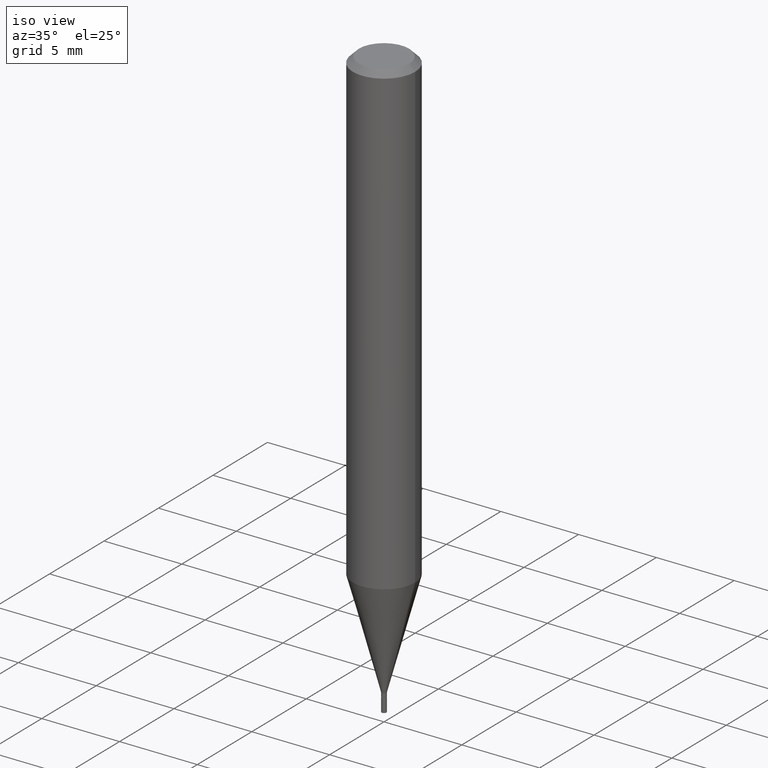
[diagram: clean part render]
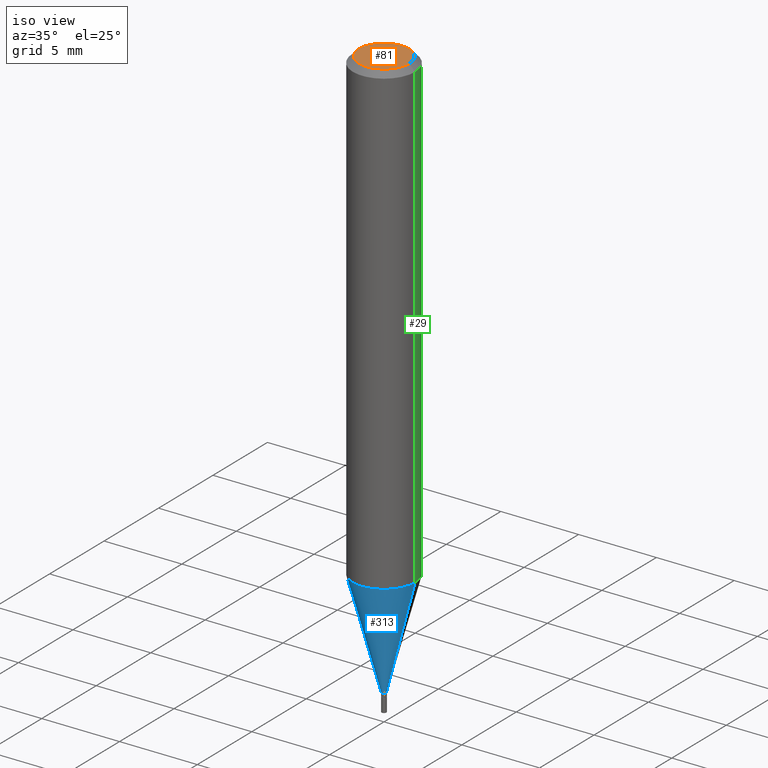
[diagram: same view with three faces highlighted in distinct colors, each labeled with its STEP entity id]
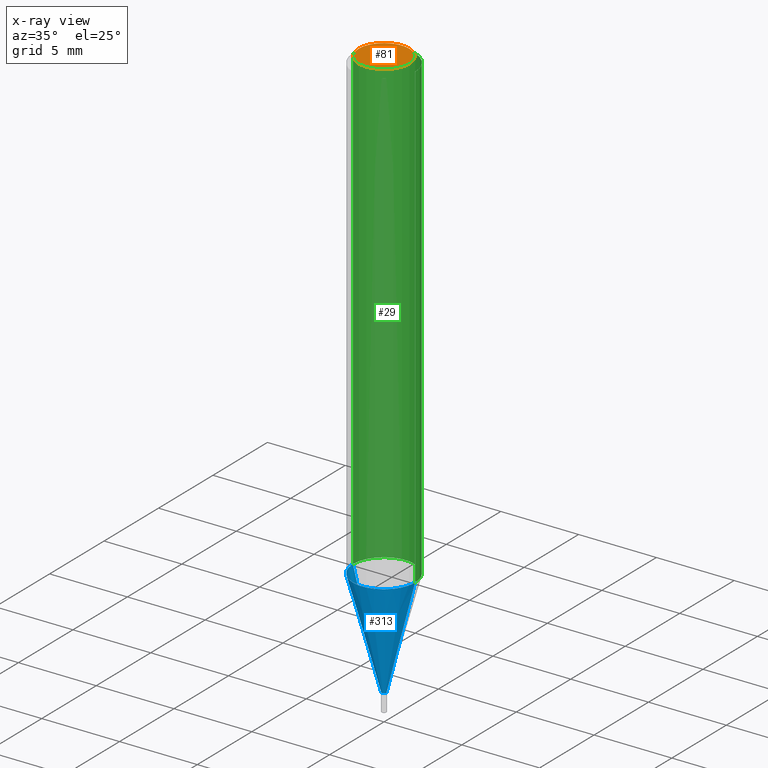
[diagram: x-ray of the same camera — body ghosted, the three highlighted faces saturated]
A machine part, iso view with three faces highlighted in distinct colors.
The next image is the same camera in x-ray (body ghosted, the three faces saturated) — at least one of them is partly hidden behind the body in this view.
Their STEP definitions:

[orange] entity #81 — the highlighted planar face has unit normal (0, -0, -1).
#22 = VERTEX_POINT ( 'NONE', #209 ) ;
#28 = CIRCLE ( 'NONE', #174, 0.06375000000000000111 ) ;
#40 = EDGE_CURVE ( 'NONE', #173, #22, #295, .T. ) ;
#59 = EDGE_CURVE ( 'NONE', #22, #173, #28, .T. ) ;
#81 = ADVANCED_FACE ( 'NONE', ( #184 ), #399, .F. ) ;
#98 = AXIS2_PLACEMENT_3D ( 'NONE', #335, #193, #431 ) ;
#173 = VERTEX_POINT ( 'NONE', #430 ) ;
#174 = AXIS2_PLACEMENT_3D ( 'NONE', #362, #293, #364 ) ;
#184 = FACE_OUTER_BOUND ( 'NONE', #421, .T. ) ;
#193 = DIRECTION ( 'NONE',  ( -2.445468806185136597E-29, 3.491481338843145583E-15, 1.000000000000000000 ) ) ;
#195 = DIRECTION ( 'NONE',  ( 2.438088387897960049E-29, -3.491481338843145188E-15, -1.000000000000000000 ) ) ;
#209 = CARTESIAN_POINT ( 'NONE',  ( 0.06375000000000000111, -5.149965923825433530E-16, 1.055081022549815572E-15 ) ) ;
#240 = ORIENTED_EDGE ( 'NONE', *, *, #59, .T. ) ;
#269 = DIRECTION ( 'NONE',  ( -1.000000000000000000, 6.982962677686265922E-15, -4.876176775795935793E-29 ) ) ;
#293 = DIRECTION ( 'NONE',  ( -2.445468806185136597E-29, 3.491481338843145583E-15, 1.000000000000000000 ) ) ;
#295 = CIRCLE ( 'NONE', #98, 0.06375000000000000111 ) ;
#316 = ORIENTED_EDGE ( 'NONE', *, *, #40, .T. ) ;
#335 = CARTESIAN_POINT ( 'NONE',  ( -2.580167728643482691E-44, 3.683795701200213974E-30, 1.055081022549812219E-15 ) ) ;
#362 = CARTESIAN_POINT ( 'NONE',  ( -2.580167728643482691E-44, 3.683795701200213974E-30, 1.055081022549812219E-15 ) ) ;
#364 = DIRECTION ( 'NONE',  ( 1.000000000000000000, -6.982962677686265922E-15, 4.947888571036530338E-29 ) ) ;
#399 = PLANE ( 'NONE',  #427 ) ;
#421 = EDGE_LOOP ( 'NONE', ( #316, #240 ) ) ;
#427 = AXIS2_PLACEMENT_3D ( 'NONE', #444, #195, #269 ) ;
#430 = CARTESIAN_POINT ( 'NONE',  ( -0.06375000000000000111, 4.713499807438246990E-16, 1.055081022549809064E-15 ) ) ;
#431 = DIRECTION ( 'NONE',  ( 1.000000000000000000, -6.982962677686265922E-15, 4.947888571036530338E-29 ) ) ;
#444 = CARTESIAN_POINT ( 'NONE',  ( 4.451638707024993845E-16, 0.06375000000000000111, 3.049585759236555793E-16 ) ) ;

[blue] entity #313 — the highlighted conical surface has half-angle 15 deg.
#23 = VECTOR ( 'NONE', #146, 39.37007874015747433 ) ;
#27 = CARTESIAN_POINT ( 'NONE',  ( 0.005899999999999924402, -5.121304827815126395E-15, -1.455000000000000293 ) ) ;
#46 = CARTESIAN_POINT ( 'NONE',  ( -0.005899999999999924402, -5.038183326606932095E-15, -1.455000000000000293 ) ) ;
#58 = EDGE_CURVE ( 'NONE', #287, #458, #234, .T. ) ;
#67 = LINE ( 'NONE', #433, #99 ) ;
#91 = DIRECTION ( 'NONE',  ( -2.445468806185136597E-29, 3.491481338843145583E-15, 1.000000000000000000 ) ) ;
#99 = VECTOR ( 'NONE', #214, 39.37007874015747433 ) ;
#114 = DIRECTION ( 'NONE',  ( 1.000000000000000000, -6.982962677686307731E-15, 0.000000000000000000 ) ) ;
#115 = CARTESIAN_POINT ( 'NONE',  ( 3.558157112999374623E-29, -5.080105348016777334E-15, -1.455000000000000293 ) ) ;
#120 = CIRCLE ( 'NONE', #145, 0.07875000000000000056 ) ;
#128 = ORIENTED_EDGE ( 'NONE', *, *, #465, .F. ) ;
#145 = AXIS2_PLACEMENT_3D ( 'NONE', #273, #91, #199 ) ;
#146 = DIRECTION ( 'NONE',  ( -0.2588190451025213501, 5.211531920934551042E-15, 0.9659258262890682012 ) ) ;
#150 = EDGE_CURVE ( 'NONE', #287, #315, #317, .T. ) ;
#159 = DIRECTION ( 'NONE',  ( -2.445468806185136597E-29, 3.491481338843145583E-15, 1.000000000000000000 ) ) ;
#166 = ORIENTED_EDGE ( 'NONE', *, *, #150, .T. ) ;
#170 = ORIENTED_EDGE ( 'NONE', *, *, #58, .F. ) ;
#176 = CARTESIAN_POINT ( 'NONE',  ( 3.558157112999374623E-29, -5.080105348016777334E-15, -1.455000000000000293 ) ) ;
#199 = DIRECTION ( 'NONE',  ( 1.000000000000000000, -6.982962677686268288E-15, 0.000000000000000000 ) ) ;
#205 = VERTEX_POINT ( 'NONE', #377 ) ;
#214 = DIRECTION ( 'NONE',  ( 0.2588190451025213501, 1.565188264969621968E-15, 0.9659258262890682012 ) ) ;
#220 = DIRECTION ( 'NONE',  ( -2.445468806185136597E-29, 3.491481338843145583E-15, 1.000000000000000000 ) ) ;
#234 = LINE ( 'NONE', #46, #23 ) ;
#253 = FACE_OUTER_BOUND ( 'NONE', #450, .T. ) ;
#259 = AXIS2_PLACEMENT_3D ( 'NONE', #176, #220, #114 ) ;
#273 = CARTESIAN_POINT ( 'NONE',  ( 2.893283295264761422E-29, -4.130841746111705750E-15, -1.183120098668607900 ) ) ;
#287 = VERTEX_POINT ( 'NONE', #392 ) ;
#302 = DIRECTION ( 'NONE',  ( 1.000000000000000000, -6.982962677686307731E-15, 0.000000000000000000 ) ) ;
#306 = EDGE_CURVE ( 'NONE', #315, #205, #67, .T. ) ;
#313 = ADVANCED_FACE ( 'NONE', ( #253 ), #345, .T. ) ;
#315 = VERTEX_POINT ( 'NONE', #27 ) ;
#317 = CIRCLE ( 'NONE', #396, 0.005899999999999924402 ) ;
#337 = CARTESIAN_POINT ( 'NONE',  ( -0.07875000000000000056, -3.571289341700626159E-15, -1.183120098668607900 ) ) ;
#345 = CONICAL_SURFACE ( 'NONE', #259, 0.005899999999999924402, 0.2617993877991500740 ) ;
#377 = CARTESIAN_POINT ( 'NONE',  ( 0.07875000000000000056, -4.680750056979499095E-15, -1.183120098668607900 ) ) ;
#389 = ORIENTED_EDGE ( 'NONE', *, *, #306, .T. ) ;
#392 = CARTESIAN_POINT ( 'NONE',  ( -0.005899999999999924402, -4.304736334153779127E-15, -1.455000000000000293 ) ) ;
#396 = AXIS2_PLACEMENT_3D ( 'NONE', #115, #159, #302 ) ;
#433 = CARTESIAN_POINT ( 'NONE',  ( 0.005899999999999924402, -5.121304827815126395E-15, -1.455000000000000293 ) ) ;
#450 = EDGE_LOOP ( 'NONE', ( #170, #166, #389, #128 ) ) ;
#458 = VERTEX_POINT ( 'NONE', #337 ) ;
#465 = EDGE_CURVE ( 'NONE', #458, #205, #120, .T. ) ;

[green] entity #29 — the highlighted cylindrical surface (partial cylindrical patch) has radius 2.0002 mm, axis along (-0, 0, 1).
#29 = ADVANCED_FACE ( 'NONE', ( #461 ), #425, .T. ) ;
#35 = DIRECTION ( 'NONE',  ( 1.000000000000000000, -6.982962677686265922E-15, 4.876176775795935232E-29 ) ) ;
#43 = DIRECTION ( 'NONE',  ( -2.445468806185136597E-29, 3.491481338843145583E-15, 1.000000000000000000 ) ) ;
#64 = EDGE_CURVE ( 'NONE', #410, #180, #357, .T. ) ;
#75 = CARTESIAN_POINT ( 'NONE',  ( 0.000000000000000000, 0.000000000000000000, 0.000000000000000000 ) ) ;
#77 = LINE ( 'NONE', #292, #251 ) ;
#82 = EDGE_CURVE ( 'NONE', #205, #410, #260, .T. ) ;
#102 = ORIENTED_EDGE ( 'NONE', *, *, #82, .F. ) ;
#117 = DIRECTION ( 'NONE',  ( -2.445468806185136877E-29, 3.491481338843145188E-15, 1.000000000000000000 ) ) ;
#129 = VECTOR ( 'NONE', #117, 39.37007874015748143 ) ;
#161 = CARTESIAN_POINT ( 'NONE',  ( 2.893283295264761422E-29, -4.130841746111705750E-15, -1.183120098668607900 ) ) ;
#179 = DIRECTION ( 'NONE',  ( -2.445468806185136877E-29, 3.491481338843145188E-15, 1.000000000000000000 ) ) ;
#180 = VERTEX_POINT ( 'NONE', #225 ) ;
#181 = AXIS2_PLACEMENT_3D ( 'NONE', #75, #355, #35 ) ;
#201 = EDGE_CURVE ( 'NONE', #205, #458, #241, .T. ) ;
#205 = VERTEX_POINT ( 'NONE', #377 ) ;
#225 = CARTESIAN_POINT ( 'NONE',  ( -0.07875000000000000056, -1.532054578686097613E-15, -0.01499999999999999944 ) ) ;
#229 = CARTESIAN_POINT ( 'NONE',  ( 3.668203209277705088E-31, -5.237222008264718399E-17, -0.01499999999999999944 ) ) ;
#238 = ORIENTED_EDGE ( 'NONE', *, *, #64, .F. ) ;
#241 = CIRCLE ( 'NONE', #309, 0.07875000000000000056 ) ;
#251 = VECTOR ( 'NONE', #179, 39.37007874015748143 ) ;
#252 = EDGE_LOOP ( 'NONE', ( #320, #387, #238, #102 ) ) ;
#260 = LINE ( 'NONE', #466, #129 ) ;
#277 = DIRECTION ( 'NONE',  ( 1.000000000000000000, -6.982962677686268288E-15, 0.000000000000000000 ) ) ;
#292 = CARTESIAN_POINT ( 'NONE',  ( -0.07875000000000000056, 5.595524044110789003E-16, -3.873661383575737792E-30 ) ) ;
#294 = EDGE_CURVE ( 'NONE', #458, #180, #77, .T. ) ;
#309 = AXIS2_PLACEMENT_3D ( 'NONE', #161, #318, #277 ) ;
#318 = DIRECTION ( 'NONE',  ( -2.445468806185136597E-29, 3.491481338843145583E-15, 1.000000000000000000 ) ) ;
#320 = ORIENTED_EDGE ( 'NONE', *, *, #201, .T. ) ;
#325 = AXIS2_PLACEMENT_3D ( 'NONE', #229, #43, #440 ) ;
#337 = CARTESIAN_POINT ( 'NONE',  ( -0.07875000000000000056, -3.571289341700626159E-15, -1.183120098668607900 ) ) ;
#355 = DIRECTION ( 'NONE',  ( -2.445468806185136597E-29, 3.491481338843145583E-15, 1.000000000000000000 ) ) ;
#357 = CIRCLE ( 'NONE', #325, 0.07875000000000000056 ) ;
#377 = CARTESIAN_POINT ( 'NONE',  ( 0.07875000000000000056, -4.680750056979499095E-15, -1.183120098668607900 ) ) ;
#387 = ORIENTED_EDGE ( 'NONE', *, *, #294, .T. ) ;
#410 = VERTEX_POINT ( 'NONE', #447 ) ;
#425 = CYLINDRICAL_SURFACE ( 'NONE', #181, 0.07875000000000000056 ) ;
#440 = DIRECTION ( 'NONE',  ( 1.000000000000000000, -6.982962677686265922E-15, 0.000000000000000000 ) ) ;
#447 = CARTESIAN_POINT ( 'NONE',  ( 0.07875000000000000056, -6.022805309504406221E-16, -0.01499999999999999944 ) ) ;
#458 = VERTEX_POINT ( 'NONE', #337 ) ;
#461 = FACE_OUTER_BOUND ( 'NONE', #252, .T. ) ;
#466 = CARTESIAN_POINT ( 'NONE',  ( 0.07875000000000000056, -5.499083108677934443E-16, 3.839989210939299016E-30 ) ) ;